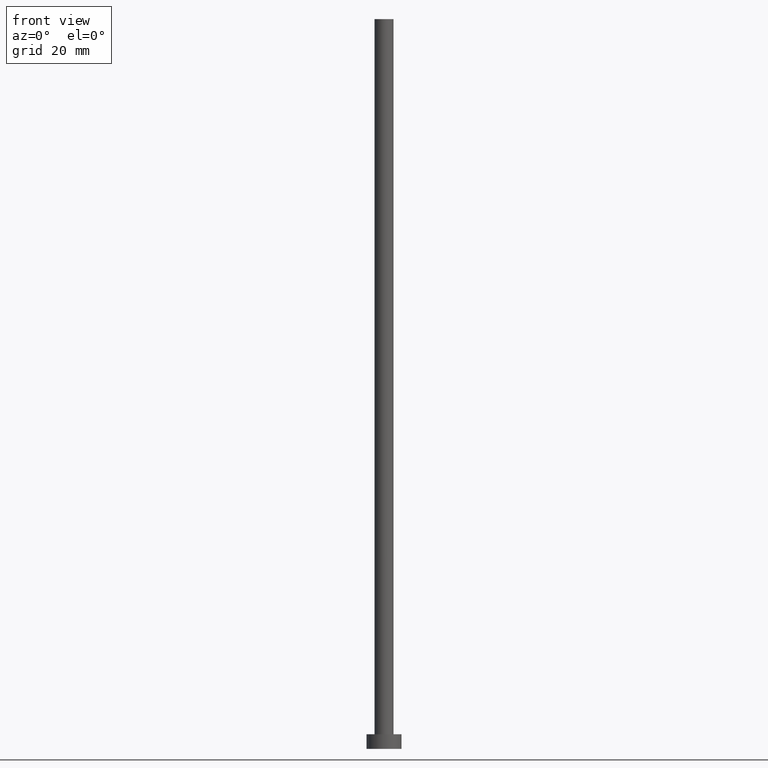
[diagram: clean part render]
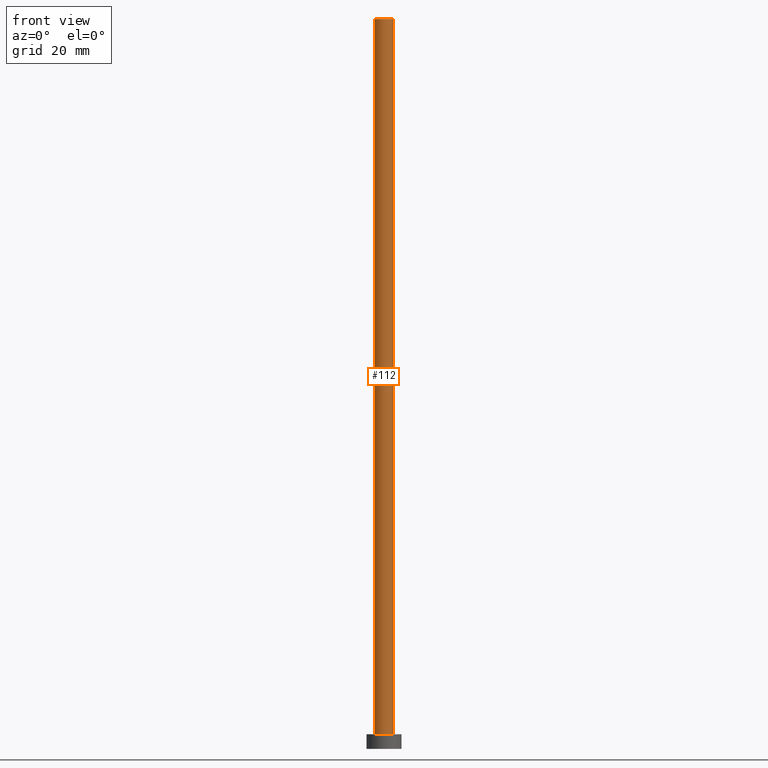
[diagram: same view with one face highlighted and labeled with its STEP entity id]
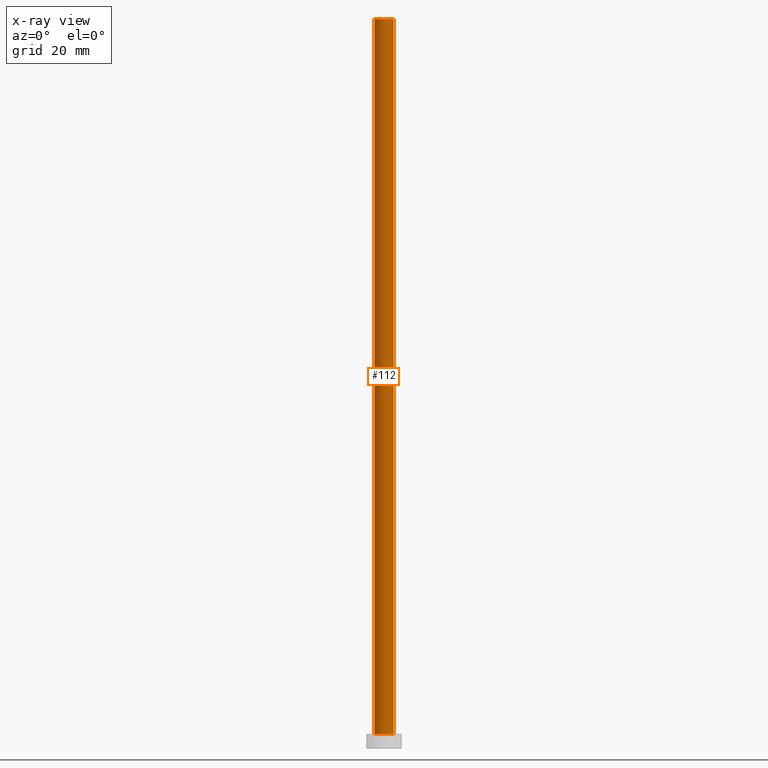
[diagram: x-ray of the same camera — body ghosted, the highlighted face saturated]
A machine part, front view. The second image highlights one B-rep face of the part: STEP entity #112.
The next image is the same camera in x-ray: the body ghosted, the highlighted face saturated — about 0% of this face is hidden behind the body in this view.
In plain terms, the highlighted cylindrical surface (edge-blend (fillet) strip) has radius 3.25 mm, axis along (-0, -0, -1).
Its self-contained STEP definition (entity closure, byte-faithful):
#4 = DIRECTION ( 'NONE',  ( 0.000000000000000000, 0.000000000000000000, 1.000000000000000000 ) ) ;
#12 = EDGE_CURVE ( 'NONE', #212, #174, #80, .T. ) ;
#13 = CARTESIAN_POINT ( 'NONE',  ( -3.250000000000000444, 0.000000000000000000, 5.000000000000000000 ) ) ;
#15 = CARTESIAN_POINT ( 'NONE',  ( 3.250000000000000444, 3.980102097228898231E-16, 250.0000000000000000 ) ) ;
#23 = LINE ( 'NONE', #62, #110 ) ;
#29 = LINE ( 'NONE', #204, #244 ) ;
#30 = FACE_OUTER_BOUND ( 'NONE', #151, .T. ) ;
#59 = ORIENTED_EDGE ( 'NONE', *, *, #243, .T. ) ;
#62 = CARTESIAN_POINT ( 'NONE',  ( -3.250000000000000444, 0.000000000000000000, 250.0000000000000000 ) ) ;
#79 = VERTEX_POINT ( 'NONE', #146 ) ;
#80 = CIRCLE ( 'NONE', #108, 3.250000000000000444 ) ;
#84 = DIRECTION ( 'NONE',  ( -0.000000000000000000, -0.000000000000000000, -1.000000000000000000 ) ) ;
#85 = DIRECTION ( 'NONE',  ( -0.000000000000000000, -0.000000000000000000, -1.000000000000000000 ) ) ;
#87 = EDGE_CURVE ( 'NONE', #174, #79, #29, .T. ) ;
#97 = CARTESIAN_POINT ( 'NONE',  ( 0.000000000000000000, 0.000000000000000000, 5.000000000000000000 ) ) ;
#100 = VERTEX_POINT ( 'NONE', #13 ) ;
#103 = CYLINDRICAL_SURFACE ( 'NONE', #159, 3.250000000000000444 ) ;
#108 = AXIS2_PLACEMENT_3D ( 'NONE', #162, #126, #179 ) ;
#110 = VECTOR ( 'NONE', #84, 1000.000000000000000 ) ;
#112 = ADVANCED_FACE ( 'NONE', ( #30 ), #103, .T. ) ;
#126 = DIRECTION ( 'NONE',  ( 0.000000000000000000, 0.000000000000000000, 1.000000000000000000 ) ) ;
#146 = CARTESIAN_POINT ( 'NONE',  ( 3.250000000000000444, 3.980102097228898231E-16, 5.000000000000000000 ) ) ;
#151 = EDGE_LOOP ( 'NONE', ( #254, #177, #59, #191 ) ) ;
#159 = AXIS2_PLACEMENT_3D ( 'NONE', #224, #85, #220 ) ;
#162 = CARTESIAN_POINT ( 'NONE',  ( 0.000000000000000000, 0.000000000000000000, 250.0000000000000000 ) ) ;
#163 = DIRECTION ( 'NONE',  ( -0.000000000000000000, -0.000000000000000000, -1.000000000000000000 ) ) ;
#169 = CARTESIAN_POINT ( 'NONE',  ( -3.250000000000000444, 0.000000000000000000, 250.0000000000000000 ) ) ;
#174 = VERTEX_POINT ( 'NONE', #15 ) ;
#177 = ORIENTED_EDGE ( 'NONE', *, *, #12, .F. ) ;
#179 = DIRECTION ( 'NONE',  ( 1.000000000000000000, 0.000000000000000000, 0.000000000000000000 ) ) ;
#191 = ORIENTED_EDGE ( 'NONE', *, *, #201, .T. ) ;
#201 = EDGE_CURVE ( 'NONE', #100, #79, #252, .T. ) ;
#204 = CARTESIAN_POINT ( 'NONE',  ( 3.250000000000000444, 3.980102097228898231E-16, 250.0000000000000000 ) ) ;
#212 = VERTEX_POINT ( 'NONE', #169 ) ;
#220 = DIRECTION ( 'NONE',  ( -1.000000000000000000, 0.000000000000000000, 0.000000000000000000 ) ) ;
#222 = AXIS2_PLACEMENT_3D ( 'NONE', #97, #4, #229 ) ;
#224 = CARTESIAN_POINT ( 'NONE',  ( 0.000000000000000000, 0.000000000000000000, 250.0000000000000000 ) ) ;
#229 = DIRECTION ( 'NONE',  ( 1.000000000000000000, 0.000000000000000000, 0.000000000000000000 ) ) ;
#243 = EDGE_CURVE ( 'NONE', #212, #100, #23, .T. ) ;
#244 = VECTOR ( 'NONE', #163, 1000.000000000000000 ) ;
#252 = CIRCLE ( 'NONE', #222, 3.250000000000000444 ) ;
#254 = ORIENTED_EDGE ( 'NONE', *, *, #87, .F. ) ;